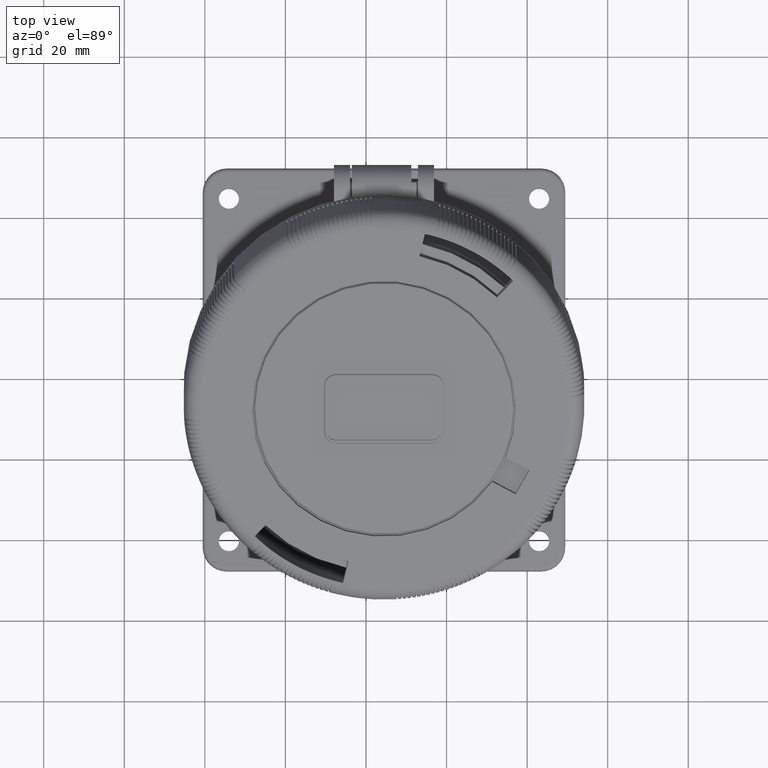
[diagram: clean part render]
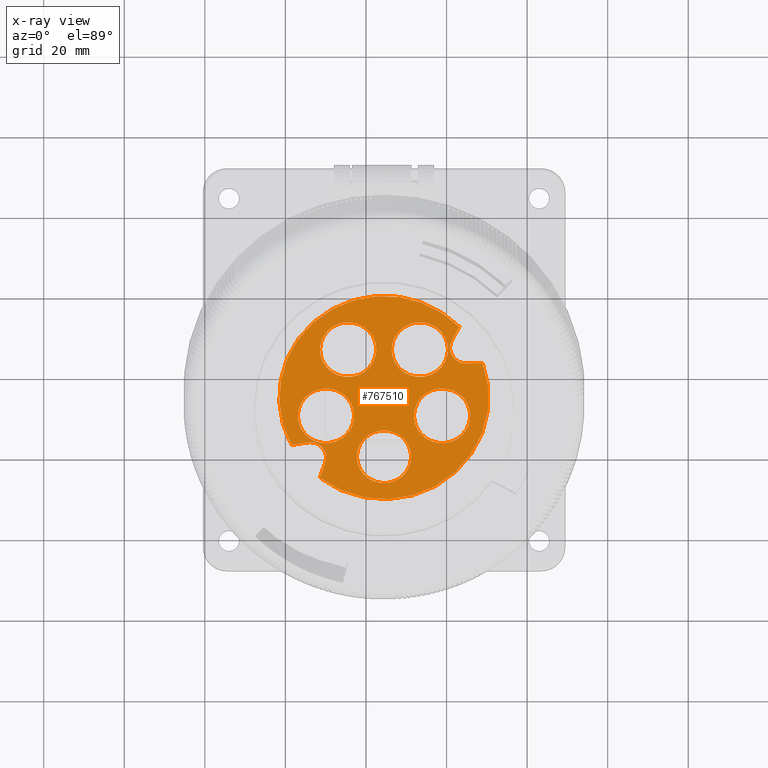
[diagram: x-ray — body ghosted, one internal face saturated and labeled with its STEP entity id]
A machine part, top view, then the same camera in x-ray: the body is ghosted and one INTERNAL B-rep face — a face not visible from any outside direction — is saturated and labeled: STEP entity #767510.
In plain terms, the highlighted planar face has unit normal (-0, 0.2588, -0.9659).
Its self-contained STEP definition (entity closure, byte-faithful):
#742250=CARTESIAN_POINT('',(36.8509188789293,29.1469771243217,
8.49999951839429));
#742260=VERTEX_POINT('',#742250);
#742340=CARTESIAN_POINT('',(33.7640709578169,26.676010471015,
8.49999951839429));
#742350=VERTEX_POINT('',#742340);
#742380=CARTESIAN_POINT('',(52.4470466471241,41.6313989749558,
8.49999951839429));
#742390=DIRECTION('',(0.780685163272491,0.624924536121126,
6.93889390390723E-17));
#742400=VECTOR('',#742390,1.);
#742410=LINE('',#742380,#742400);
#742420=EDGE_CURVE('',#742350,#742260,#742410,.T.);
#742630=CARTESIAN_POINT('',(43.3048388306624,26.6276682396032,
8.49999951839429));
#742640=VERTEX_POINT('',#742630);
#742690=CARTESIAN_POINT('',(39.3506170234138,26.0242364712317,
8.49999951839429));
#742700=DIRECTION('',(2.77555756156289E-16,-2.77555756156289E-16,1.));
#742710=DIRECTION('',(0.877341808329136,0.479865972285764,
-1.08586870980923E-16));
#742720=AXIS2_PLACEMENT_3D('',#742690,#742700,#742710);
#742730=CIRCLE('',#742720,4.);
#742740=EDGE_CURVE('',#742640,#742260,#742730,.T.);
#742930=CARTESIAN_POINT('',(46.317802446507,6.88405005660083,
8.49999951839428));
#742940=DIRECTION('',(0.150857942092855,-0.988555451812143,
-3.05311331771918E-16));
#742950=VECTOR('',#742940,1.);
#742960=LINE('',#742930,#742950);
#742970=CARTESIAN_POINT('',(43.901334763774,22.7188961956473,
8.49999951839428));
#742980=VERTEX_POINT('',#742970);
#742990=EDGE_CURVE('',#742640,#742980,#742960,.T.);
#753500=CARTESIAN_POINT('',(48.0777589999981,48.381271,8.49999951839429)
);
#753510=DIRECTION('',(-1.38777878078145E-16,3.05311331771918E-16,-1.));
#753520=DIRECTION('',(-0.877341808329136,-0.479865972285764,
-1.38777878078144E-17));
#753530=AXIS2_PLACEMENT_3D('',#753500,#753510,#753520);
#753540=CIRCLE('',#753530,26.);
#753550=CARTESIAN_POINT('',(65.2729356290633,67.8832170745653,
8.49999951839429));
#753560=VERTEX_POINT('',#753550);
#753570=EDGE_CURVE('',#753560,#742980,#753540,.T.);
#754780=CARTESIAN_POINT('',(61.8722366082148,65.8659038962438,
8.4999995183943));
#754790=VERTEX_POINT('',#754780);
#754840=CARTESIAN_POINT('',(44.7479579675853,55.7076885531018,
8.49999951839429));
#754850=DIRECTION('',(-0.860060274487055,-0.510192438447742,
-2.42861286636753E-17));
#754860=VECTOR('',#754850,1.);
#754870=LINE('',#754840,#754860);
#754880=EDGE_CURVE('',#753560,#754790,#754870,.T.);
#755090=CARTESIAN_POINT('',(55.831745791562,69.2589070931083,
8.4999995183943));
#755100=VERTEX_POINT('',#755090);
#755150=CARTESIAN_POINT('',(59.8314668544239,69.3061449941921,
8.4999995183943));
#755160=DIRECTION('',(2.77555756156289E-16,-2.77555756156289E-16,1.));
#755170=DIRECTION('',(0.877341808329136,0.479865972285764,
-1.08586870980923E-16));
#755180=AXIS2_PLACEMENT_3D('',#755150,#755160,#755170);
#755190=CIRCLE('',#755180,4.);
#755200=EDGE_CURVE('',#755100,#754790,#755190,.T.);
#755390=CARTESIAN_POINT('',(56.5026206741592,12.4546813145297,
8.49999951839428));
#755400=DIRECTION('',(-0.0118094752709453,0.999930265715478,
3.05311331771918E-16));
#755410=VECTOR('',#755400,1.);
#755420=LINE('',#755390,#755410);
#755430=CARTESIAN_POINT('',(55.7850508421707,73.2126554249487,
8.4999995183943));
#755440=VERTEX_POINT('',#755430);
#755450=EDGE_CURVE('',#755100,#755440,#755420,.T.);
#766190=EDGE_CURVE('',#742350,#755440,#753540,.T.);
#766610=CARTESIAN_POINT('',(65.6645163555533,17.4658205733618,
8.49999951839428));
#766620=DIRECTION('',(-1.34332955619677E-16,2.74521874059724E-16,-1.));
#766630=DIRECTION('',(-0.877341808329136,-0.479865972285764,
-1.38777878078144E-17));
#766640=AXIS2_PLACEMENT_3D('',#766610,#766620,#766630);
#766650=PLANE('',#766640);
#766660=CARTESIAN_POINT('',(55.3477284801275,35.0895426038136,
8.49999951839429));
#766670=DIRECTION('',(-1.38777878078145E-16,3.05311331771918E-16,-1.));
#766680=DIRECTION('',(-0.877341808329136,-0.479865972285764,
-1.38777878078144E-17));
#766690=AXIS2_PLACEMENT_3D('',#766660,#766670,#766680);
#766700=CIRCLE('',#766690,6.75);
#766710=CARTESIAN_POINT('',(49.4256712739058,31.8504472908847,
8.49999951839429));
#766720=VERTEX_POINT('',#766710);
#766730=CARTESIAN_POINT('',(61.2697856863491,38.3286379167425,
8.49999951839429));
#766740=VERTEX_POINT('',#766730);
#766750=EDGE_CURVE('',#766720,#766740,#766700,.T.);
#766760=ORIENTED_EDGE('',*,*,#766750,.T.);
#766770=EDGE_CURVE('',#766740,#766720,#766700,.T.);
#766780=ORIENTED_EDGE('',*,*,#766770,.T.);
#766790=EDGE_LOOP('',(#766780,#766760));
#766800=FACE_BOUND('',#766790,.T.);
#766810=CARTESIAN_POINT('',(37.6831182139269,37.3597491936185,
8.49999951839429));
#766820=DIRECTION('',(2.77555756156289E-16,-2.77555756156289E-16,1.));
#766830=DIRECTION('',(0.877341808329136,0.479865972285764,
-1.08586870980923E-16));
#766840=AXIS2_PLACEMENT_3D('',#766810,#766820,#766830);
#766850=CIRCLE('',#766840,7.);
#766860=CARTESIAN_POINT('',(43.8245108722308,40.7188109996188,
8.49999951839429));
#766870=VERTEX_POINT('',#766860);
#766880=CARTESIAN_POINT('',(31.5417255556229,34.0006873876181,
8.49999951839429));
#766890=VERTEX_POINT('',#766880);
#766900=EDGE_CURVE('',#766870,#766890,#766850,.T.);
#766910=ORIENTED_EDGE('',*,*,#766900,.F.);
#766920=EDGE_CURVE('',#766890,#766870,#766850,.T.);
#766930=ORIENTED_EDGE('',*,*,#766920,.F.);
#766940=EDGE_LOOP('',(#766930,#766910));
#766950=FACE_BOUND('',#766940,.T.);
#766960=CARTESIAN_POINT('',(34.3835482132309,54.8613243120945,
8.4999995183943));
#766970=DIRECTION('',(2.77555756156289E-16,-2.77555756156289E-16,1.));
#766980=DIRECTION('',(0.877341808329136,0.479865972285764,
-1.08586870980923E-16));
#766990=AXIS2_PLACEMENT_3D('',#766960,#766970,#766980);
#767000=CIRCLE('',#766990,7.);
#767010=CARTESIAN_POINT('',(40.5249408715348,58.2203861180949,
8.49999951839429));
#767020=VERTEX_POINT('',#767010);
#767030=CARTESIAN_POINT('',(28.2421555549269,51.5022625060942,
8.4999995183943));
#767040=VERTEX_POINT('',#767030);
#767050=EDGE_CURVE('',#767020,#767040,#767000,.T.);
#767060=ORIENTED_EDGE('',*,*,#767050,.F.);
#767070=EDGE_CURVE('',#767040,#767020,#767000,.T.);
#767080=ORIENTED_EDGE('',*,*,#767070,.F.);
#767090=EDGE_LOOP('',(#767080,#767060));
#767100=FACE_BOUND('',#767090,.T.);
#767110=CARTESIAN_POINT('',(62.9654880219637,51.1880528883063,
8.49999951839429));
#767120=DIRECTION('',(2.77555756156289E-16,-2.77555756156289E-16,1.));
#767130=DIRECTION('',(0.877341808329136,0.479865972285764,
-1.08586870980923E-16));
#767140=AXIS2_PLACEMENT_3D('',#767110,#767120,#767130);
#767150=CIRCLE('',#767140,7.);
#767160=CARTESIAN_POINT('',(69.1068806802677,54.5471146943066,
8.49999951839429));
#767170=VERTEX_POINT('',#767160);
#767180=CARTESIAN_POINT('',(56.8240953636598,47.8289910823059,
8.49999951839429));
#767190=VERTEX_POINT('',#767180);
#767200=EDGE_CURVE('',#767170,#767190,#767150,.T.);
#767210=ORIENTED_EDGE('',*,*,#767200,.F.);
#767220=EDGE_CURVE('',#767190,#767170,#767150,.T.);
#767230=ORIENTED_EDGE('',*,*,#767220,.F.);
#767240=EDGE_LOOP('',(#767230,#767210));
#767250=FACE_BOUND('',#767240,.T.);
#767260=CARTESIAN_POINT('',(50.0089120707418,63.4076860021673,
8.4999995183943));
#767270=DIRECTION('',(2.77555756156289E-16,-2.77555756156289E-16,1.));
#767280=DIRECTION('',(0.877341808329136,0.479865972285764,
-1.08586870980923E-16));
#767290=AXIS2_PLACEMENT_3D('',#767260,#767270,#767280);
#767300=CIRCLE('',#767290,7.);
#767310=CARTESIAN_POINT('',(56.1503047290457,66.7667478081677,
8.49999951839429));
#767320=VERTEX_POINT('',#767310);
#767330=CARTESIAN_POINT('',(43.8675194124378,60.0486241961669,
8.4999995183943));
#767340=VERTEX_POINT('',#767330);
#767350=EDGE_CURVE('',#767320,#767340,#767300,.T.);
#767360=ORIENTED_EDGE('',*,*,#767350,.F.);
#767370=EDGE_CURVE('',#767340,#767320,#767300,.T.);
#767380=ORIENTED_EDGE('',*,*,#767370,.F.);
#767390=EDGE_LOOP('',(#767380,#767360));
#767400=FACE_BOUND('',#767390,.T.);
#767410=ORIENTED_EDGE('',*,*,#755450,.T.);
#767420=ORIENTED_EDGE('',*,*,#755200,.F.);
#767430=ORIENTED_EDGE('',*,*,#754880,.T.);
#767440=ORIENTED_EDGE('',*,*,#753570,.F.);
#767450=ORIENTED_EDGE('',*,*,#742990,.T.);
#767460=ORIENTED_EDGE('',*,*,#742740,.F.);
#767470=ORIENTED_EDGE('',*,*,#742420,.T.);
#767480=ORIENTED_EDGE('',*,*,#766190,.F.);
#767490=EDGE_LOOP('',(#767480,#767470,#767460,#767450,#767440,#767430,
#767420,#767410));
#767500=FACE_OUTER_BOUND('',#767490,.T.);
#767510=ADVANCED_FACE('',(#766800,#766950,#767100,#767250,#767400,
#767500),#766650,.F.);